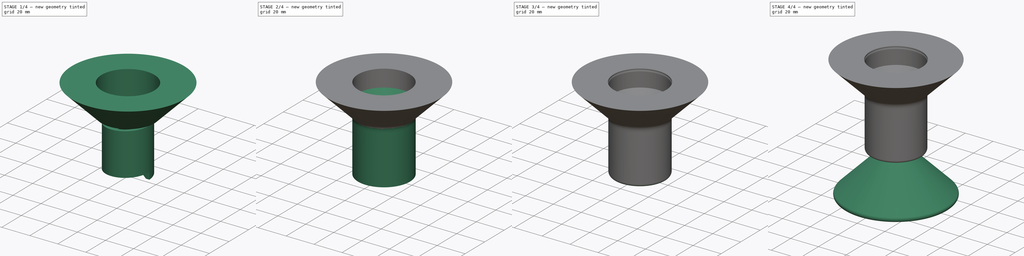
[diagram: build sequence overview — one tinted view per stage of 4, left to right]
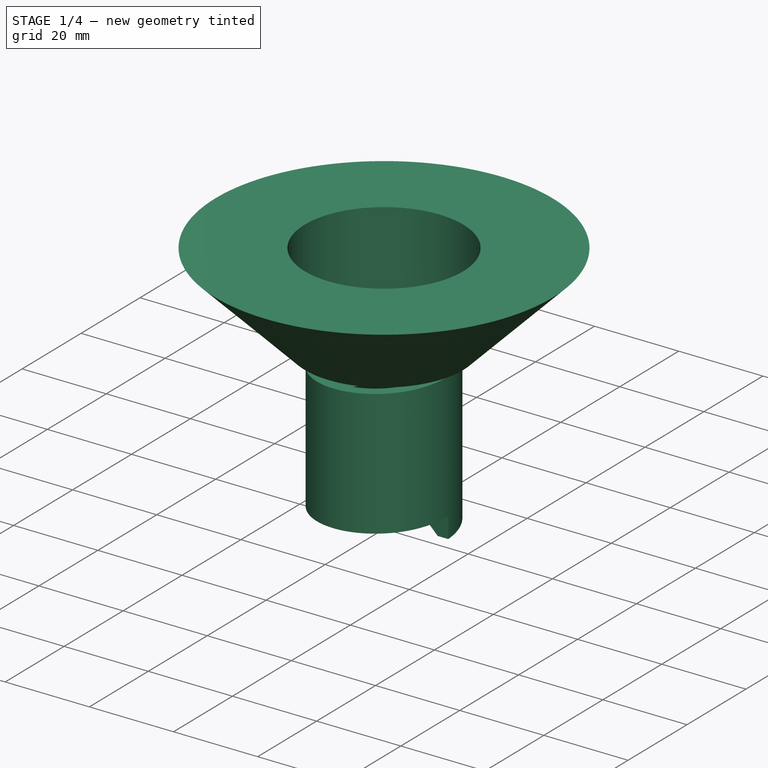
[diagram: stage 1 of 4 — iso view after this stage's code; geometry added in this stage tinted green]
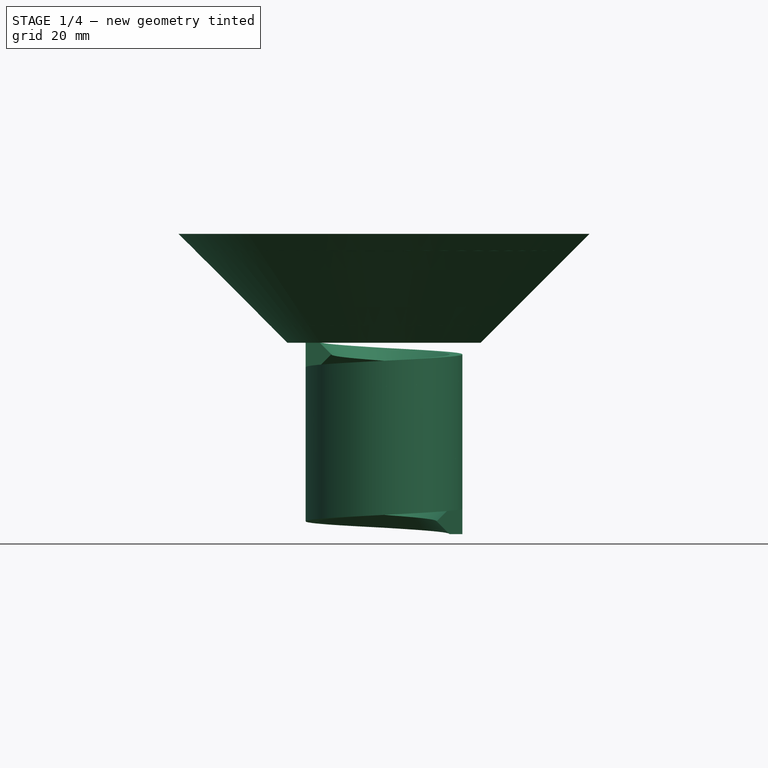
[diagram: stage 1 of 4 — front view after this stage's code; geometry added in this stage tinted green]
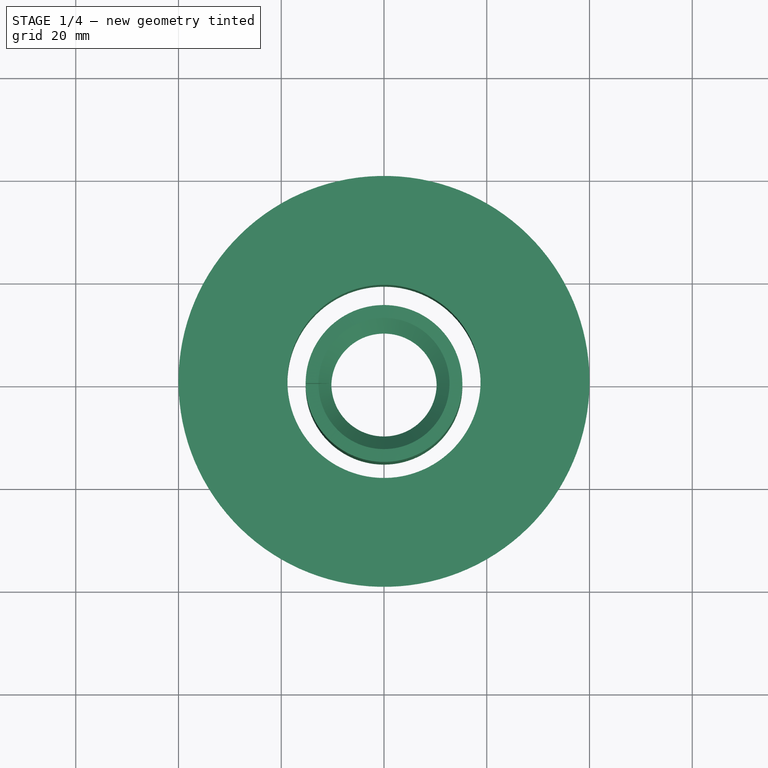
[diagram: stage 1 of 4 — top view after this stage's code; geometry added in this stage tinted green]
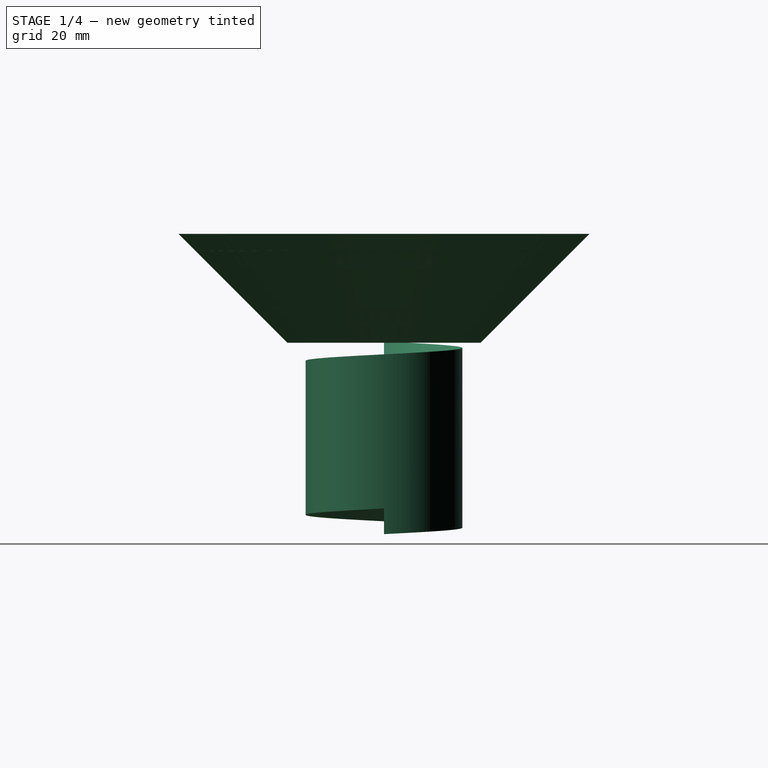
[diagram: stage 1 of 4 — right view after this stage's code; geometry added in this stage tinted green]
FCSTD DOCUMENT  (FreeCAD 0.16R6707 (Git))
Label: spool hub
License: All rights reserved
LicenseURL: http://en.wikipedia.org/wiki/All_rights_reserved
objects: App::DocumentObjectGroup×7, PartDesign::Fillet×7, Sketcher::SketchObject×5, PartDesign::Revolution×3, Part::Helix×2, Part::Sweep×2, Part::Feature×1
note: 23 computed .brp shape members not serialized (recipe doc carries the construction recipe); baked Part::Feature solids carry a one-line shape summary decoded from their .brp

FEATURE [Part::Helix] Helix001  label="f Helix"
  Angle = 0
  Height = 32.5
  LocalCoord = 0
  Pitch = 5
  Radius = 10
  Style = 1
FEATURE [Part::Sweep] Sweep001  label="f Sweep"
  Frenet = true
  Placement = pos=(0,0,-34) rot=(0,0,1;0rad)
  Sections = -> [Sketch004]
  Solid = true
  Spine = -> Helix001 [Edge1,Edge2,Edge3,Edge4,Edge5,Edge6,Edge7]
  Transition = 1
FEATURE [App::DocumentObjectGroup] Group003  label="m export"
  Group = -> [Fillet004,Fillet003]
FEATURE [App::DocumentObjectGroup] Group  label="male"
  Group = -> [Revolution,Sketch001,Fillet001,Sweep,Helix,Group003]
FEATURE [App::DocumentObjectGroup] Group004  label="f export"
  Group = -> [Fillet005,Fillet002]
FEATURE [App::DocumentObjectGroup] Group001  label="female"
  Group = -> [Revolution002,Sketch004,Fillet,Helix001,Sweep001,Group004]
FEATURE [Sketcher::SketchObject] Sketch005  label="washer profile"
  Placement = pos=(0,0,0) rot=(1,0,0;1.5708rad)
  sketch-geometry (23):
    g0: LineSegment [constr] StartX=0 StartY=0 StartZ=0 EndX=18.8 EndY=0 EndZ=0
    g1: LineSegment [constr] StartX=18.8 StartY=0 StartZ=0 EndX=18.8 EndY=12.2 EndZ=0
    g2: LineSegment [constr] StartX=18.8 StartY=12.2 StartZ=0 EndX=6.05 EndY=24.95 EndZ=0
    g3: LineSegment [constr] StartX=18.8 StartY=0 StartZ=0 EndX=40 EndY=0 EndZ=0
    g4: LineSegment [constr] StartX=40 StartY=0 StartZ=0 EndX=10 EndY=30 EndZ=0
    g5: LineSegment [constr] StartX=10 StartY=30 StartZ=0 EndX=10 EndY=71.2 EndZ=0
    g6: LineSegment [constr] StartX=0 StartY=71.2 StartZ=0 EndX=0 EndY=24.95 EndZ=0
    g7: LineSegment [constr] StartX=0 StartY=24.95 StartZ=0 EndX=6.05 EndY=24.95 EndZ=0
    g8: LineSegment [constr] StartX=0 StartY=71.2 StartZ=0 EndX=10 EndY=71.2 EndZ=0
    g9: LineSegment [constr] StartX=12.75 StartY=30 StartZ=0 EndX=12.75 EndY=68.25 EndZ=0
    g10: LineSegment [constr] StartX=12.75 StartY=30 StartZ=0 EndX=18.8 EndY=30 EndZ=0
    g11: LineSegment [constr] StartX=18.8 StartY=30 StartZ=0 EndX=18.8 EndY=68.25 EndZ=0
    g12: LineSegment StartX=18.8 StartY=68.25 StartZ=0 EndX=40 EndY=89.45 EndZ=0
    g13: LineSegment [constr] StartX=12.75 StartY=71.2 StartZ=0 EndX=12.75 EndY=68.25 EndZ=0
    g14: LineSegment [constr] StartX=12.75 StartY=71.2 StartZ=0 EndX=18.8 EndY=77.25 EndZ=0
    g15: LineSegment StartX=18.8 StartY=77.25 StartZ=0 EndX=18.8 EndY=89.45 EndZ=0
    g16: LineSegment StartX=18.8 StartY=89.45 StartZ=0 EndX=40 EndY=89.45 EndZ=0
    g17: LineSegment StartX=18.8 StartY=68.25 StartZ=0 EndX=18.8 EndY=77.25 EndZ=0
    g18: LineSegment [constr] StartX=12.75 StartY=68.25 StartZ=0 EndX=18.8 EndY=68.25 EndZ=0
    g19: LineSegment [constr] StartX=18.8 StartY=30 StartZ=0 EndX=18.8 EndY=21.2 EndZ=0
    g20: LineSegment [constr] StartX=18.8 StartY=21.2 StartZ=0 EndX=18.8 EndY=12.2 EndZ=0
    g21: LineSegment [constr] StartX=10 StartY=71.2 StartZ=0 EndX=12.75 EndY=71.2 EndZ=0
    g22: LineSegment [constr] StartX=10 StartY=30 StartZ=0 EndX=12.75 EndY=30 EndZ=0
  constraints (63):
    c: Coincident(g-1,g0)
    c: PointOnObject(g0,g-1)
    c: Coincident(g0,g1)
    c: Vertical(g1)
    c: Coincident(g1,g2)
    c: DistanceX(g0,g0) = 18.8
    c: DistanceY(g-1,g1) = 12.2
    c: DistanceX(g-1,g2) = 6.05
    c: Angle(g2) = 2.35619
    c: Coincident(g0,g3)
    c: Horizontal(g3)
    c: Coincident(g3,g4)
    c: Coincident(g4,g5)
    c: Vertical(g5)
    c: PointOnObject(g6,g-2)
    c: Vertical(g6)
    c: Coincident(g6,g7)
    c: Coincident(g7,g2)
    c: Horizontal(g7)
    c: Parallel(g4,g2)
    c: DistanceX(g6,g5) = 10
    c: Coincident(g8,g6)
    c: Coincident(g8,g5)
    c: Horizontal(g8)
    c: DistanceX(g-1,g3) = 40
    c: Vertical(g9)
    c: DistanceX(g5,g9) = 2.75
    c: Coincident(g9,g10)
    c: Horizontal(g10)
    c: Coincident(g10,g11)
    c: Vertical(g11)
    c: Coincident(g11,g12)
    c: Coincident(g13,g9)
    c: Vertical(g13)
    c: Coincident(g13,g14)
    c: Coincident(g14,g15)
    c: Vertical(g15)
    c: Coincident(g15,g16)
    c: Horizontal(g16)
    c: Coincident(g12,g16)
    c: Coincident(g17,g11)
    c: Coincident(g17,g14)
    c: Vertical(g17)
    c: Angle(g14) = 0.785398
    c: DistanceY(g15,g15) = 12.2
    c: Parallel(g12,g14)
    c: Equal(g3,g16)
    c: Coincident(g18,g9)
    c: Coincident(g18,g11)
    c: Horizontal(g18)
    c: Coincident(g10,g19)
    c: PointOnObject(g19,g4)
    c: Vertical(g19)
    c: Coincident(g19,g20)
    c: Coincident(g20,g1)
    c: Vertical(g20)
    c: DistanceY(g19,g5) = 50
    c: Coincident(g21,g5)
    c: Coincident(g21,g13)
    c: Horizontal(g21)
    c: Coincident(g22,g4)
    c: Coincident(g22,g9)
    c: Horizontal(g22)
FEATURE [PartDesign::Revolution] Revolution003  label="profile to washer"
  Angle = 360
  Axis = (0,0,1)
  Base = (0,0,0)
  Placement = pos=(0,0,0) rot=(1,0,0;1.5708rad)
  ReferenceAxis = -> Sketch005 [V_Axis]
  Reversed = true
  Sketch = -> Sketch005
FEATURE [Part::Feature] Revolution003001  label="profile to washer"
  shape: bbox 80 x 80 x 21.2 mm, 3 faces (baked)
FEATURE [PartDesign::Fillet] Fillet006  label="washer"
  Base = -> Revolution003001 [Edge4,Edge2,Edge1]
  Radius = 2
FEATURE [App::DocumentObjectGroup] Group006  label="washer export"
  Group = -> [Fillet006]
FEATURE [App::DocumentObjectGroup] Group005  label="washer"
  Group = -> [Revolution003,Group006,Revolution003001]
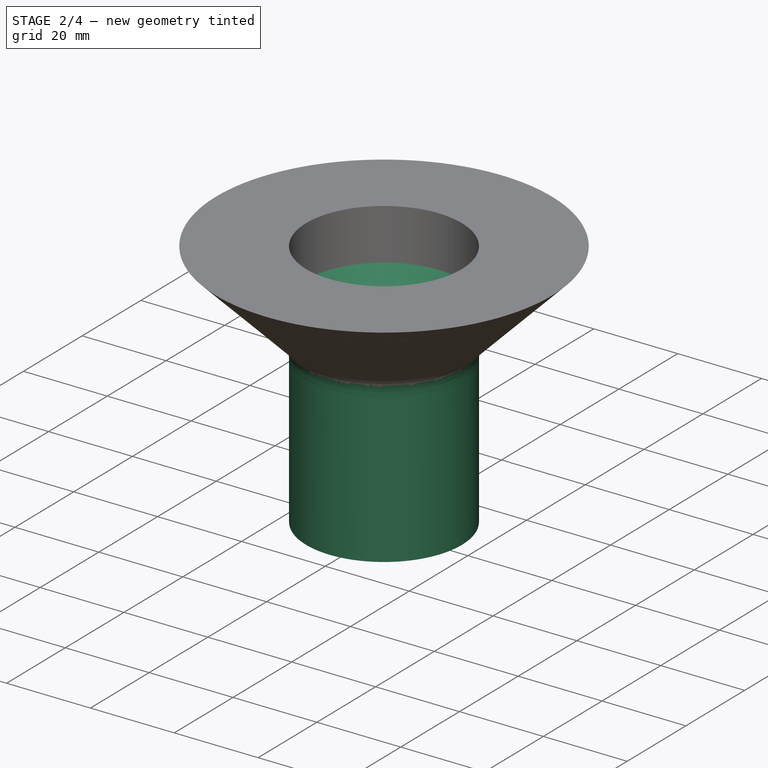
[diagram: stage 2 of 4 — iso view after this stage's code; geometry added in this stage tinted green]
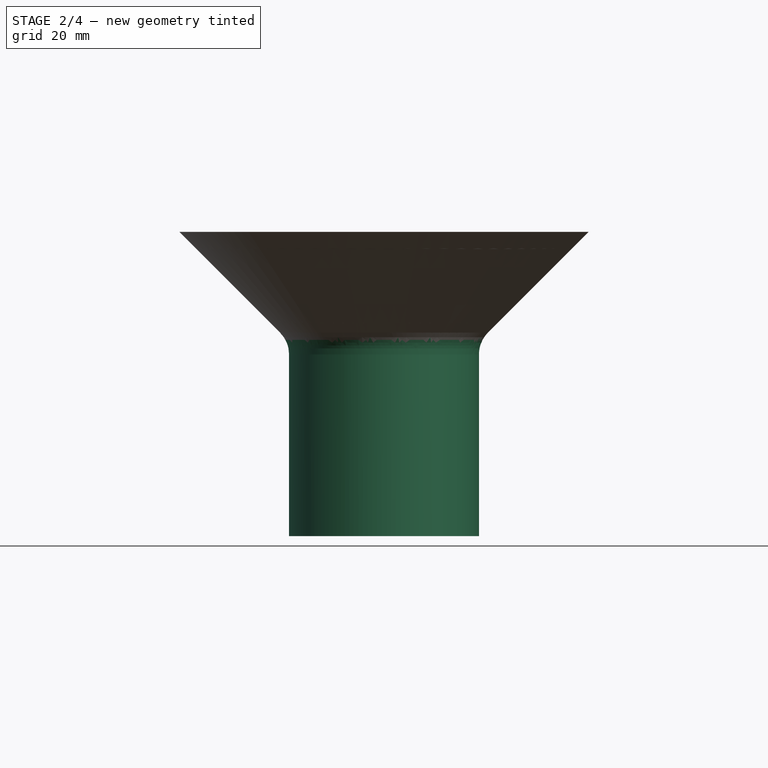
[diagram: stage 2 of 4 — front view after this stage's code; geometry added in this stage tinted green]
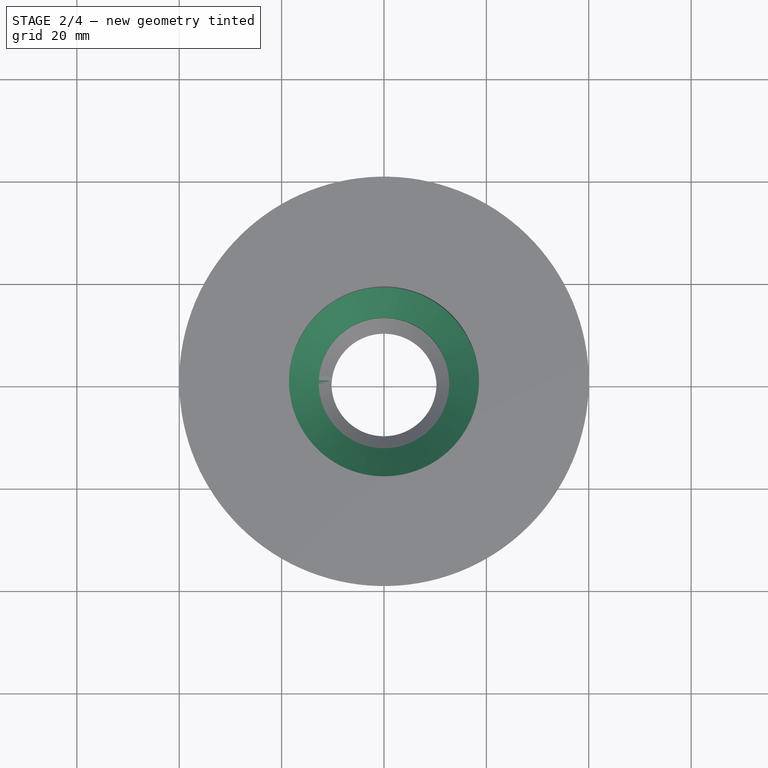
[diagram: stage 2 of 4 — top view after this stage's code; geometry added in this stage tinted green]
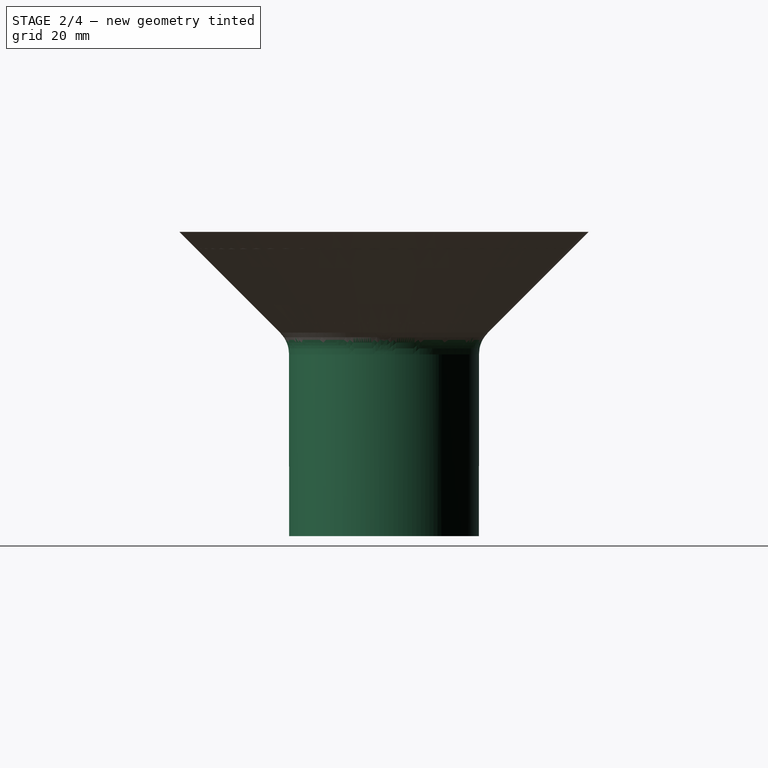
[diagram: stage 2 of 4 — right view after this stage's code; geometry added in this stage tinted green]
FEATURE [Sketcher::SketchObject] Sketch001  label="m thread profile"
  Placement = pos=(0,0,0) rot=(1,0,0;1.5708rad)
  sketch-geometry (14):
    g0: LineSegment [constr] StartX=0 StartY=0 StartZ=0 EndX=18.55 EndY=0 EndZ=0
    g1: LineSegment [constr] StartX=18.55 StartY=0 StartZ=0 EndX=18.55 EndY=12.1 EndZ=0
    g2: LineSegment [constr] StartX=18.55 StartY=12.1 StartZ=0 EndX=6.05 EndY=24.6 EndZ=0
    g3: LineSegment [constr] StartX=18.55 StartY=0 StartZ=0 EndX=40 EndY=0 EndZ=0
    g4: LineSegment [constr] StartX=40 StartY=0 StartZ=0 EndX=10 EndY=30 EndZ=0
    g5: LineSegment [constr] StartX=10 StartY=30 StartZ=0 EndX=10 EndY=105 EndZ=0
    g6: LineSegment [constr] StartX=0 StartY=105 StartZ=0 EndX=0 EndY=24.6 EndZ=0
    g7: LineSegment [constr] StartX=0 StartY=24.6 StartZ=0 EndX=6.05 EndY=24.6 EndZ=0
    g8: LineSegment [constr] StartX=0 StartY=105 StartZ=0 EndX=10 EndY=105 EndZ=0
    g9: LineSegment StartX=10 StartY=30 StartZ=0 EndX=12.5 EndY=32.5 EndZ=0
    g10: LineSegment StartX=12.5 StartY=32.5 StartZ=0 EndX=10 EndY=35 EndZ=0
    g11: LineSegment StartX=10 StartY=35 StartZ=0 EndX=5 EndY=35 EndZ=0
    g12: LineSegment StartX=5 StartY=35 StartZ=0 EndX=5 EndY=30 EndZ=0
    g13: LineSegment StartX=5 StartY=30 StartZ=0 EndX=10 EndY=30 EndZ=0
  constraints (40):
    c: Coincident(g-1,g0)
    c: PointOnObject(g0,g-1)
    c: Coincident(g0,g1)
    c: Vertical(g1)
    c: Coincident(g1,g2)
    c: DistanceX(g0,g0) = 18.55
    c: DistanceY(g-1,g1) = 12.1
    c: DistanceX(g-1,g2) = 6.05
    c: Angle(g2) = 2.35619
    c: Coincident(g0,g3)
    c: Horizontal(g3)
    c: Coincident(g3,g4)
    c: Coincident(g4,g5)
    c: Vertical(g5)
    c: PointOnObject(g6,g-2)
    c: Vertical(g6)
    c: Coincident(g6,g7)
    c: Coincident(g7,g2)
    c: Horizontal(g7)
    c: Parallel(g4,g2)
    c: DistanceX(g6,g5) = 10
    c: Coincident(g8,g6)
    c: Coincident(g8,g5)
    c: Horizontal(g8)
    c: DistanceX(g-1,g3) = 40
    c: DistanceY(g5,g5) = 75
    c: Coincident(g4,g9)
    c: Coincident(g9,g10)
    c: PointOnObject(g10,g5)
    c: Coincident(g10,g11)
    c: Horizontal(g11)
    c: Coincident(g11,g12)
    c: Vertical(g12)
    c: Coincident(g12,g13)
    c: Horizontal(g13)
    c: Coincident(g4,g13)
    c: Perpendicular(g10,g9)
    c: Equal(g10,g9)
    c: DistanceX(g13,g13) = 5
    c: DistanceY(g12,g12) = 5
FEATURE [Sketcher::SketchObject] Sketch003  label="f core profile"
  Placement = pos=(0,0,0) rot=(1,0,0;1.5708rad)
  sketch-geometry (23):
    g0: LineSegment [constr] StartX=0 StartY=0 StartZ=0 EndX=18.55 EndY=0 EndZ=0
    g1: LineSegment [constr] StartX=18.55 StartY=0 StartZ=0 EndX=18.55 EndY=12.2 EndZ=0
    g2: LineSegment [constr] StartX=18.55 StartY=12.2 StartZ=0 EndX=6.05 EndY=24.7 EndZ=0
    g3: LineSegment [constr] StartX=18.55 StartY=0 StartZ=0 EndX=40 EndY=0 EndZ=0
    g4: LineSegment [constr] StartX=40 StartY=0 StartZ=0 EndX=10 EndY=30 EndZ=0
    g5: LineSegment [constr] StartX=10 StartY=30 StartZ=0 EndX=10 EndY=71.45 EndZ=0
    g6: LineSegment [constr] StartX=0 StartY=71.45 StartZ=0 EndX=0 EndY=24.7 EndZ=0
    g7: LineSegment [constr] StartX=0 StartY=24.7 StartZ=0 EndX=6.05 EndY=24.7 EndZ=0
    g8: LineSegment [constr] StartX=0 StartY=71.45 StartZ=0 EndX=10 EndY=71.45 EndZ=0
    g9: LineSegment StartX=12.75 StartY=30 StartZ=0 EndX=12.75 EndY=68 EndZ=0
    g10: LineSegment StartX=12.75 StartY=30 StartZ=0 EndX=18.55 EndY=30 EndZ=0
    g11: LineSegment StartX=18.55 StartY=30 StartZ=0 EndX=18.55 EndY=68 EndZ=0
    g12: LineSegment StartX=18.55 StartY=68 StartZ=0 EndX=40 EndY=89.45 EndZ=0
    g13: LineSegment StartX=12.75 StartY=71.45 StartZ=0 EndX=12.75 EndY=68 EndZ=0
    g14: LineSegment StartX=12.75 StartY=71.45 StartZ=0 EndX=18.55 EndY=77.25 EndZ=0
    g15: LineSegment StartX=18.55 StartY=77.25 StartZ=0 EndX=18.55 EndY=89.45 EndZ=0
    g16: LineSegment StartX=18.55 StartY=89.45 StartZ=0 EndX=40 EndY=89.45 EndZ=0
    g17: LineSegment [constr] StartX=18.55 StartY=68 StartZ=0 EndX=18.55 EndY=77.25 EndZ=0
    g18: LineSegment [constr] StartX=12.75 StartY=68 StartZ=0 EndX=18.55 EndY=68 EndZ=0
    g19: LineSegment [constr] StartX=18.55 StartY=30 StartZ=0 EndX=18.55 EndY=21.45 EndZ=0
    g20: LineSegment [constr] StartX=18.55 StartY=21.45 StartZ=0 EndX=18.55 EndY=12.2 EndZ=0
    g21: LineSegment [constr] StartX=10 StartY=71.45 StartZ=0 EndX=12.75 EndY=71.45 EndZ=0
    g22: LineSegment [constr] StartX=10 StartY=30 StartZ=0 EndX=12.75 EndY=30 EndZ=0
  constraints (63):
    c: Coincident(g-1,g0)
    c: PointOnObject(g0,g-1)
    c: Coincident(g0,g1)
    c: Vertical(g1)
    c: Coincident(g1,g2)
    c: DistanceX(g0,g0) = 18.55
    c: DistanceY(g-1,g1) = 12.2
    c: DistanceX(g-1,g2) = 6.05
    c: Angle(g2) = 2.35619
    c: Coincident(g0,g3)
    c: Horizontal(g3)
    c: Coincident(g3,g4)
    c: Coincident(g4,g5)
    c: Vertical(g5)
    c: PointOnObject(g6,g-2)
    c: Vertical(g6)
    c: Coincident(g6,g7)
    c: Coincident(g7,g2)
    c: Horizontal(g7)
    c: Parallel(g4,g2)
    c: DistanceX(g6,g5) = 10
    c: Coincident(g8,g6)
    c: Coincident(g8,g5)
    c: Horizontal(g8)
    c: DistanceX(g-1,g3) = 40
    c: Vertical(g9)
    c: DistanceX(g5,g9) = 2.75
    c: Coincident(g9,g10)
    c: Horizontal(g10)
    c: Coincident(g10,g11)
    c: Vertical(g11)
    c: Coincident(g11,g12)
    c: Coincident(g13,g9)
    c: Vertical(g13)
    c: Coincident(g13,g14)
    c: Coincident(g14,g15)
    c: Vertical(g15)
    c: Coincident(g15,g16)
    c: Horizontal(g16)
    c: Coincident(g12,g16)
    c: Coincident(g17,g11)
    c: Coincident(g17,g14)
    c: Vertical(g17)
    c: Angle(g14) = 0.785398
    c: DistanceY(g15,g15) = 12.2
    c: Parallel(g12,g14)
    c: Equal(g3,g16)
    c: Coincident(g18,g9)
    c: Coincident(g18,g11)
    c: Horizontal(g18)
    c: Coincident(g10,g19)
    c: PointOnObject(g19,g4)
    c: Vertical(g19)
    c: Coincident(g19,g20)
    c: Coincident(g20,g1)
    c: Vertical(g20)
    c: DistanceY(g19,g5) = 50
    c: Coincident(g21,g5)
    c: Coincident(g21,g13)
    c: Horizontal(g21)
    c: Coincident(g22,g4)
    c: Coincident(g22,g9)
    c: Horizontal(g22)
FEATURE [PartDesign::Revolution] Revolution002  label="f core"
  Angle = 360
  Axis = (0,0,1)
  Base = (0,0,0)
  Placement = pos=(0,0,0) rot=(1,0,0;1.5708rad)
  ReferenceAxis = -> Sketch003 [V_Axis]
  Reversed = true
  Sketch = -> Sketch003
FEATURE [Sketcher::SketchObject] Sketch004  label="f thread profile"
  Placement = pos=(0,0,0) rot=(1,0,0;1.5708rad)
  sketch-geometry (25):
    g0: LineSegment [constr] StartX=0 StartY=0 StartZ=0 EndX=16.05 EndY=0 EndZ=0
    g1: LineSegment [constr] StartX=16.05 StartY=0 StartZ=0 EndX=16.05 EndY=10.1 EndZ=0
    g2: LineSegment [constr] StartX=16.05 StartY=10.1 StartZ=0 EndX=6.05 EndY=20.1 EndZ=0
    g3: LineSegment [constr] StartX=16.05 StartY=0 StartZ=0 EndX=40 EndY=0 EndZ=0
    g4: LineSegment [constr] StartX=40 StartY=0 StartZ=0 EndX=10 EndY=30 EndZ=0
    g5: LineSegment [constr] StartX=10 StartY=30 StartZ=0 EndX=10 EndY=105 EndZ=0
    g6: LineSegment [constr] StartX=0 StartY=105 StartZ=0 EndX=0 EndY=20.1 EndZ=0
    g7: LineSegment [constr] StartX=0 StartY=20.1 StartZ=0 EndX=6.05 EndY=20.1 EndZ=0
    g8: LineSegment [constr] StartX=0 StartY=105 StartZ=0 EndX=10 EndY=105 EndZ=0
    g9: LineSegment [constr] StartX=12.75 StartY=77.5 StartZ=0 EndX=12.75 EndY=107.5 EndZ=0
    g10: LineSegment [constr] StartX=12.75 StartY=107.5 StartZ=0 EndX=0 EndY=107.5 EndZ=0
    g11: LineSegment [constr] StartX=12.75 StartY=77.5 StartZ=0 EndX=16.05 EndY=77.5 EndZ=0
    g12: LineSegment [constr] StartX=16.05 StartY=77.5 StartZ=0 EndX=16.05 EndY=107.5 EndZ=0
    g13: LineSegment [constr] StartX=16.05 StartY=107.5 StartZ=0 EndX=40 EndY=131.45 EndZ=0
    g14: LineSegment [constr] StartX=12.75 StartY=118.05 StartZ=0 EndX=12.75 EndY=107.5 EndZ=0
    g15: LineSegment [constr] StartX=12.75 StartY=118.05 StartZ=0 EndX=16.05 EndY=121.35 EndZ=0
    g16: LineSegment [constr] StartX=16.05 StartY=121.35 StartZ=0 EndX=16.05 EndY=131.45 EndZ=0
    g17: LineSegment [constr] StartX=16.05 StartY=131.45 StartZ=0 EndX=40 EndY=131.45 EndZ=0
    g18: LineSegment [constr] StartX=16.05 StartY=10.1 StartZ=0 EndX=16.05 EndY=77.5 EndZ=0
    g19: LineSegment [constr] StartX=16.05 StartY=107.5 StartZ=0 EndX=16.05 EndY=121.35 EndZ=0
    g20: LineSegment StartX=12.75 StartY=100 StartZ=0 EndX=10.25 EndY=97.5 EndZ=0
    g21: LineSegment StartX=10.25 StartY=97.5 StartZ=0 EndX=12.75 EndY=95 EndZ=0
    g22: LineSegment StartX=12.75 StartY=95 StartZ=0 EndX=15.25 EndY=95 EndZ=0
    g23: LineSegment StartX=15.25 StartY=95 StartZ=0 EndX=15.25 EndY=100 EndZ=0
    g24: LineSegment StartX=15.25 StartY=100 StartZ=0 EndX=12.75 EndY=100 EndZ=0
  constraints (72):
    c: Coincident(g-1,g0)
    c: PointOnObject(g0,g-1)
    c: Coincident(g0,g1)
    c: Vertical(g1)
    c: Coincident(g1,g2)
    c: DistanceX(g0,g0) = 16.05
    c: DistanceY(g-1,g1) = 10.1
    c: DistanceX(g-1,g2) = 6.05
    c: Angle(g2) = 2.35619
    c: Coincident(g0,g3)
    c: Horizontal(g3)
    c: Coincident(g3,g4)
    c: Coincident(g4,g5)
    c: Vertical(g5)
    c: PointOnObject(g6,g-2)
    c: Vertical(g6)
    c: Coincident(g6,g7)
    c: Coincident(g7,g2)
    c: Horizontal(g7)
    c: Parallel(g4,g2)
    c: DistanceX(g6,g5) = 10
    c: Coincident(g8,g6)
    c: Coincident(g8,g5)
    c: Horizontal(g8)
    c: DistanceX(g-1,g3) = 40
    c: DistanceY(g5,g5) = 75
    c: Vertical(g9)
    c: Coincident(g9,g10)
    c: PointOnObject(g10,g-2)
    c: Horizontal(g10)
    c: DistanceX(g5,g9) = 2.75
    c: DistanceY(g-1,g10) = 107.5
    c: DistanceY(g9,g9) = 30
    c: Coincident(g9,g11)
    c: Horizontal(g11)
    c: Coincident(g11,g12)
    c: Vertical(g12)
    c: Coincident(g12,g13)
    c: Coincident(g14,g9)
    c: Vertical(g14)
    c: Coincident(g14,g15)
    c: Coincident(g15,g16)
    c: Vertical(g16)
    c: Coincident(g16,g17)
    c: Horizontal(g17)
    c: Coincident(g13,g17)
    c: Coincident(g18,g1)
    c: Coincident(g18,g11)
    c: Vertical(g18)
    c: Coincident(g19,g12)
    c: Coincident(g19,g15)
    c: Vertical(g19)
    c: Angle(g15) = 0.785398
    c: DistanceY(g16,g16) = 10.1
    c: Parallel(g13,g15)
    c: Equal(g3,g17)
    c: DistanceY(g12,g12) = 30
    c: PointOnObject(g20,g9)
    c: Coincident(g20,g21)
    c: PointOnObject(g21,g9)
    c: Coincident(g21,g22)
    c: Horizontal(g22)
    c: Coincident(g22,g23)
    c: Vertical(g23)
    c: Coincident(g23,g24)
    c: Coincident(g24,g20)
    c: Horizontal(g24)
    c: Equal(g20,g21)
    c: Perpendicular(g21,g20)
    c: DistanceY(g23,g23) = 5
    c: DistanceX(g22,g22) = 2.5
    c: DistanceY(g23,g5) = 5
FEATURE [App::DocumentObjectGroup] Group002  label="hook"
FEATURE [PartDesign::Fillet] Fillet  label="f head to core"
  Base = -> Revolution002 [Edge11]
  Placement = pos=(0,0,0) rot=(1,0,0;1.5708rad)
  Radius = 6
FEATURE [PartDesign::Fillet] Fillet005  label="f thread Fillet (export)"
  Base = -> Sweep001 [Edge68,Edge70,Edge2,Edge5]
  Placement = pos=(0,0,-34) rot=(0,0,1;0rad)
  Radius = 1.5
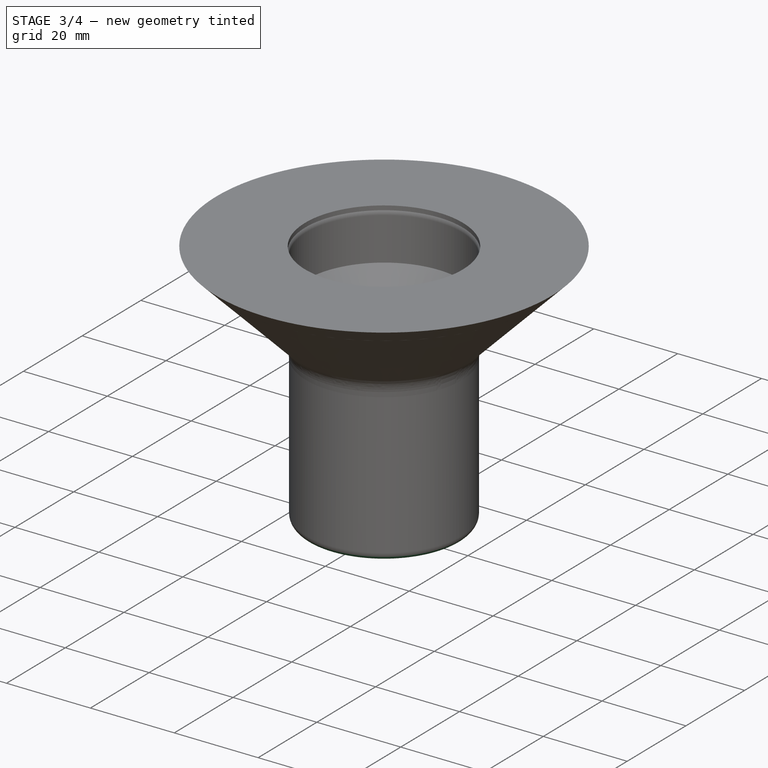
[diagram: stage 3 of 4 — iso view after this stage's code; geometry added in this stage tinted green]
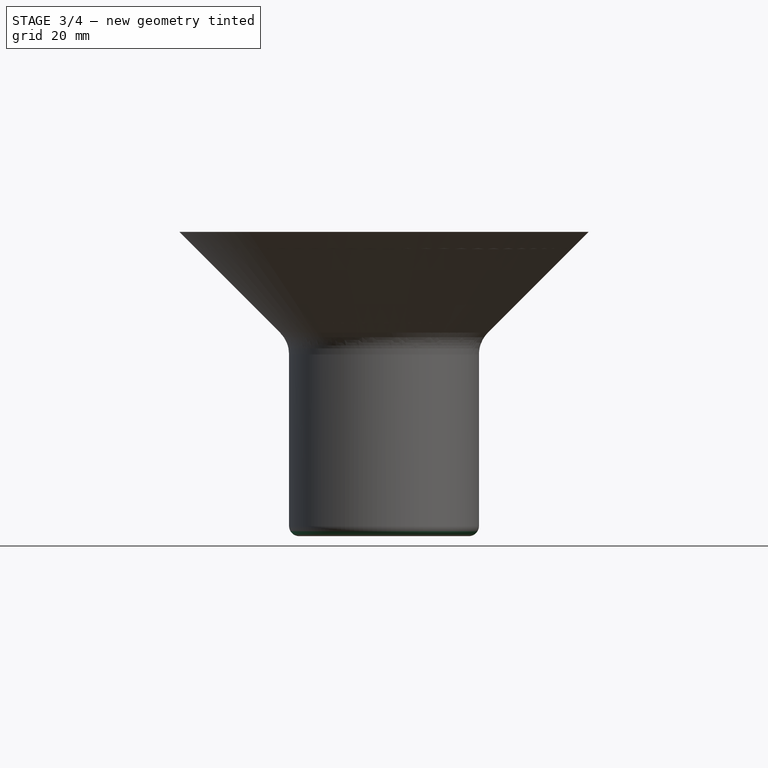
[diagram: stage 3 of 4 — front view after this stage's code; geometry added in this stage tinted green]
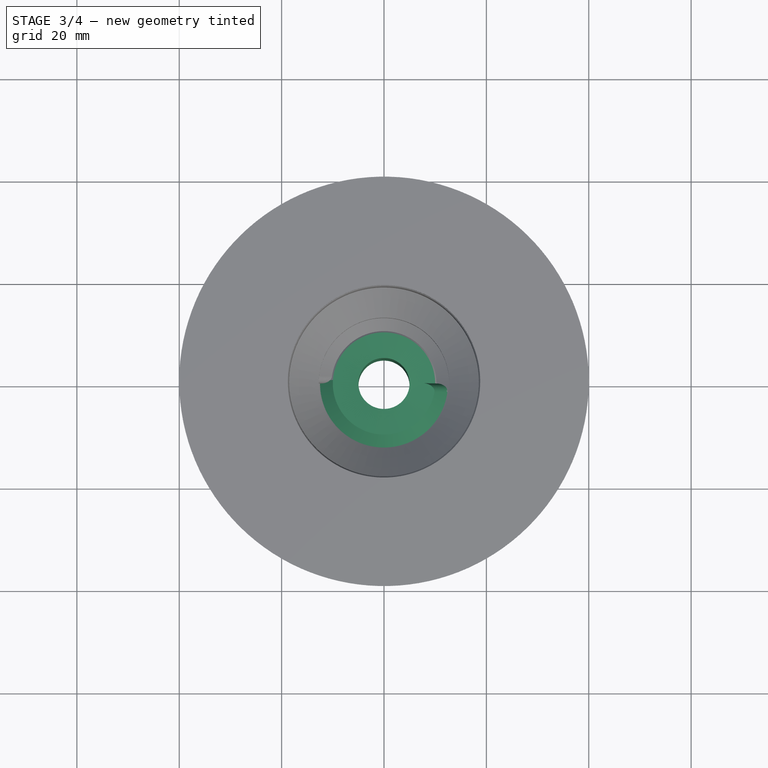
[diagram: stage 3 of 4 — top view after this stage's code; geometry added in this stage tinted green]
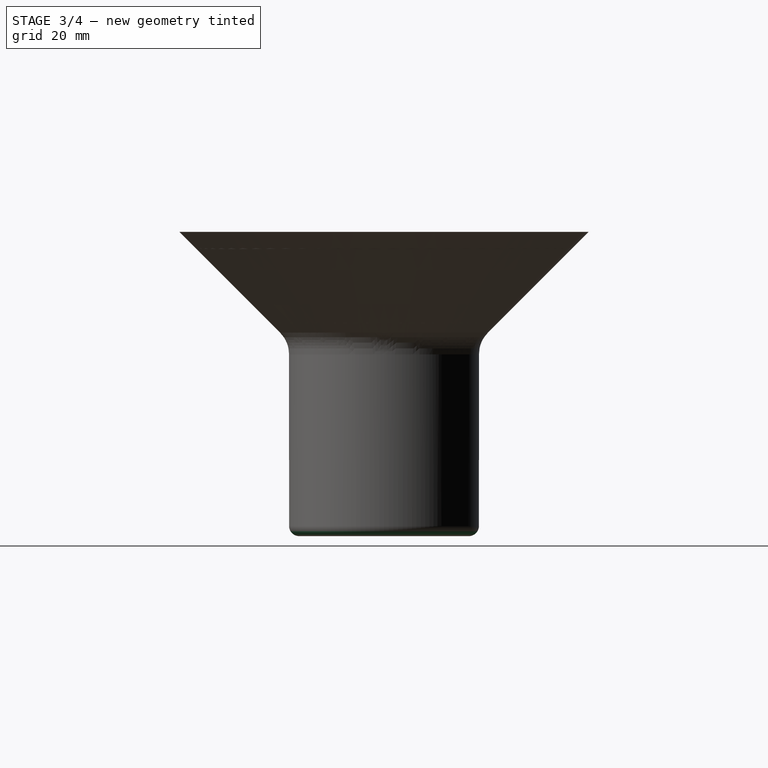
[diagram: stage 3 of 4 — right view after this stage's code; geometry added in this stage tinted green]
FEATURE [PartDesign::Fillet] Fillet002  label="f externals (export)"
  Base = -> Fillet [Edge6,Edge3,Edge11,Edge8]
  Placement = pos=(0,0,0) rot=(1,0,0;1.5708rad)
  Radius = 2
FEATURE [Part::Helix] Helix  label="m Helix"
  Angle = 0
  Height = 30
  LocalCoord = 0
  Pitch = 5
  Radius = 10
  Style = 1
FEATURE [Part::Sweep] Sweep  label="m Sweep"
  Frenet = true
  Placement = pos=(0,0,33.5) rot=(0,0,1;0rad)
  Sections = -> [Sketch001]
  Solid = true
  Spine = -> Helix [Edge1,Edge2,Edge3,Edge4,Edge5,Edge6]
  Transition = 1
FEATURE [PartDesign::Fillet] Fillet004  label="m thread Fillet (export)"
  Base = -> Sweep [Edge2,Edge5,Edge60,Edge58]
  Placement = pos=(0,0,33.5) rot=(0,0,1;0rad)
  Radius = 1.5
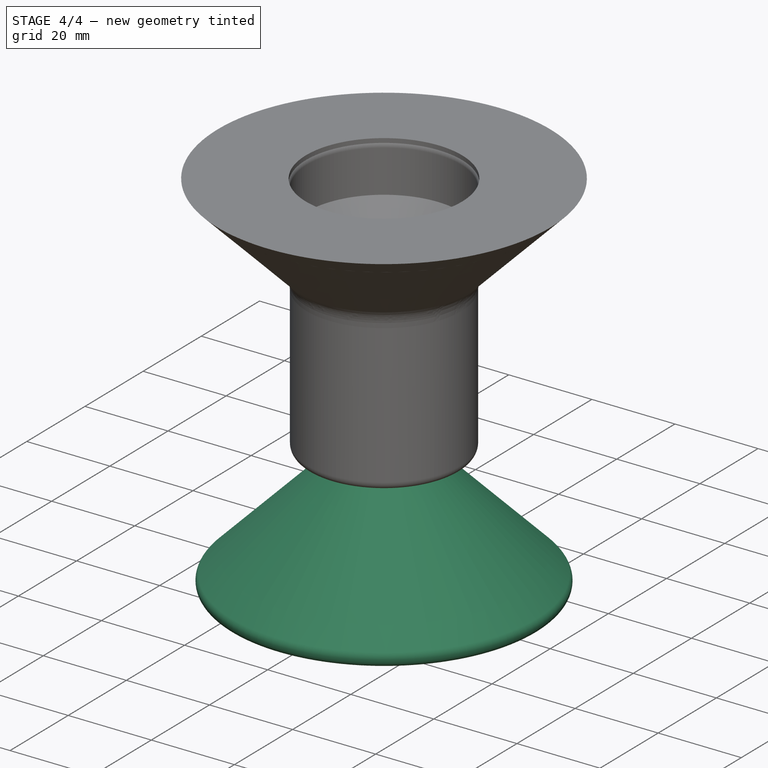
[diagram: stage 4 of 4 — iso view after this stage's code; geometry added in this stage tinted green]
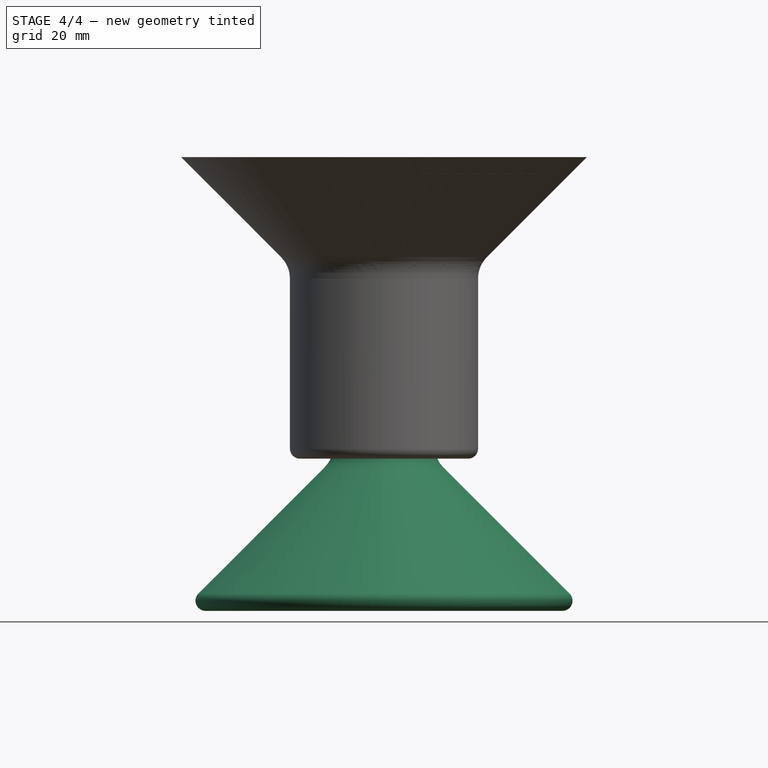
[diagram: stage 4 of 4 — front view after this stage's code; geometry added in this stage tinted green]
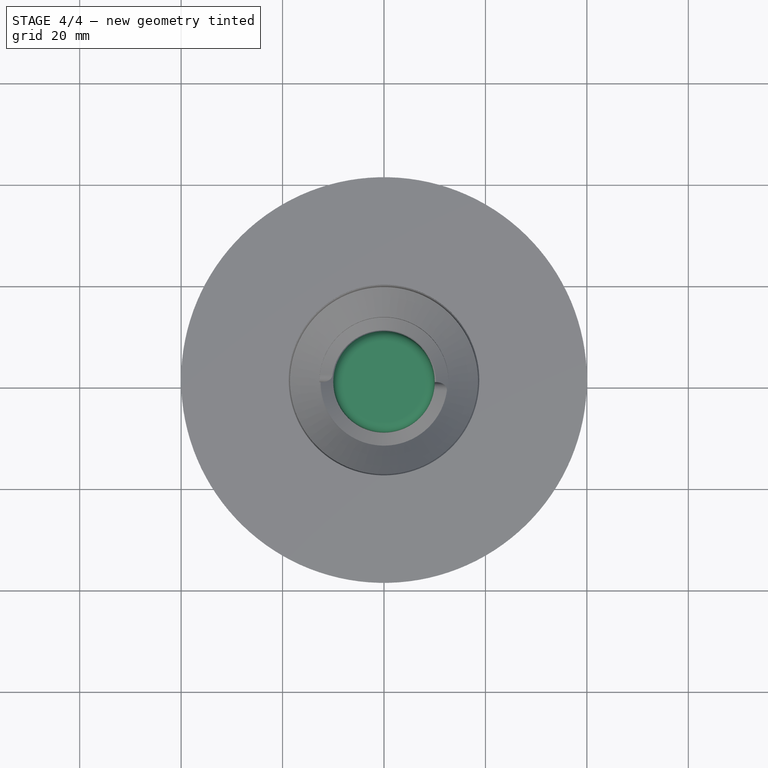
[diagram: stage 4 of 4 — top view after this stage's code; geometry added in this stage tinted green]
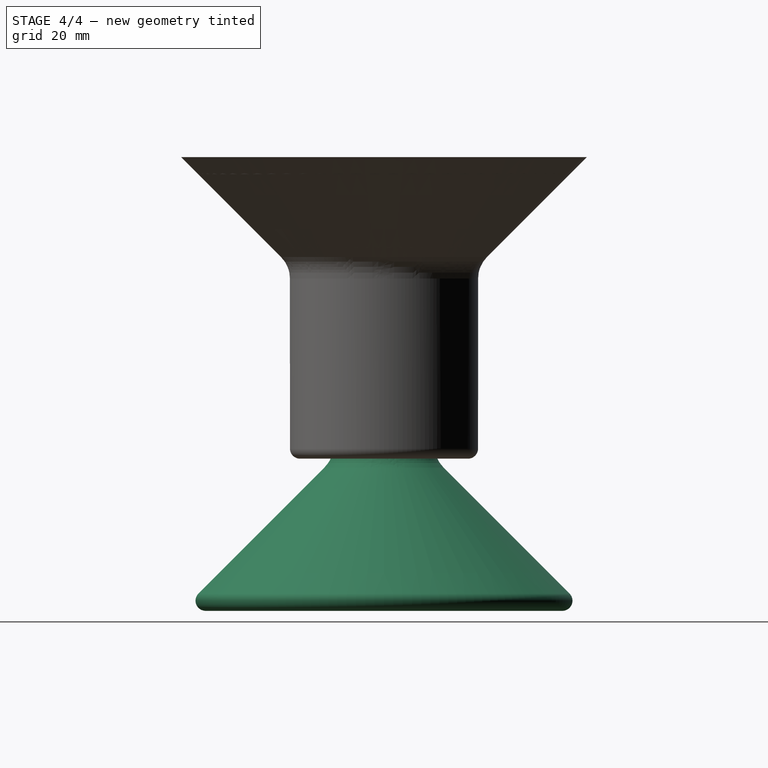
[diagram: stage 4 of 4 — right view after this stage's code; geometry added in this stage tinted green]
FEATURE [Sketcher::SketchObject] Sketch  label="m core profile"
  Placement = pos=(0,0,0) rot=(1,0,0;1.5708rad)
  sketch-geometry (10):
    g0: LineSegment [constr] StartX=0 StartY=0 StartZ=0 EndX=18.55 EndY=0 EndZ=0
    g1: LineSegment StartX=18.55 StartY=0 StartZ=0 EndX=18.55 EndY=12.2 EndZ=0
    g2: LineSegment StartX=18.55 StartY=12.2 StartZ=0 EndX=6.05 EndY=24.7 EndZ=0
    g3: LineSegment StartX=18.55 StartY=0 StartZ=0 EndX=40 EndY=0 EndZ=0
    g4: LineSegment StartX=40 StartY=0 StartZ=0 EndX=10 EndY=30 EndZ=0
    g5: LineSegment StartX=10 StartY=30 StartZ=0 EndX=10 EndY=71.45 EndZ=0
    g6: LineSegment StartX=0 StartY=71.45 StartZ=0 EndX=0 EndY=24.7 EndZ=0
    g7: LineSegment StartX=0 StartY=24.7 StartZ=0 EndX=6.05 EndY=24.7 EndZ=0
    g8: LineSegment StartX=0 StartY=71.45 StartZ=0 EndX=10 EndY=71.45 EndZ=0
    g9: LineSegment [constr] StartX=18.55 StartY=12.2 StartZ=0 EndX=18.55 EndY=21.45 EndZ=0
  constraints (29):
    c: Coincident(g-1,g0)
    c: PointOnObject(g0,g-1)
    c: Coincident(g0,g1)
    c: Vertical(g1)
    c: Coincident(g1,g2)
    c: DistanceX(g0,g0) = 18.55
    c: DistanceY(g-1,g1) = 12.2
    c: DistanceX(g-1,g2) = 6.05
    c: Angle(g2) = 2.35619
    c: Coincident(g0,g3)
    c: Horizontal(g3)
    c: Coincident(g3,g4)
    c: Coincident(g4,g5)
    c: Vertical(g5)
    c: PointOnObject(g6,g-2)
    c: Vertical(g6)
    c: Coincident(g6,g7)
    c: Coincident(g7,g2)
    c: Horizontal(g7)
    c: Parallel(g4,g2)
    c: DistanceX(g6,g5) = 10
    c: Coincident(g8,g6)
    c: Coincident(g8,g5)
    c: Horizontal(g8)
    c: DistanceX(g-1,g3) = 40
    c: Coincident(g9,g1)
    c: PointOnObject(g9,g4)
    c: Vertical(g9)
    c: DistanceY(g9,g5) = 50
FEATURE [PartDesign::Revolution] Revolution  label="m core"
  Angle = 360
  Axis = (0,0,1)
  Base = (0,0,0)
  Placement = pos=(0,0,0) rot=(1,0,0;1.5708rad)
  ReferenceAxis = -> Sketch [V_Axis]
  Reversed = true
  Sketch = -> Sketch
FEATURE [PartDesign::Fillet] Fillet001  label="m head to core"
  Base = -> Revolution [Edge2]
  Placement = pos=(0,0,0) rot=(1,0,0;1.5708rad)
  Radius = 6
FEATURE [PartDesign::Fillet] Fillet003  label="m externals (export)"
  Base = -> Fillet001 [Edge3,Edge8,Edge7]
  Placement = pos=(0,0,0) rot=(1,0,0;1.5708rad)
  Radius = 2
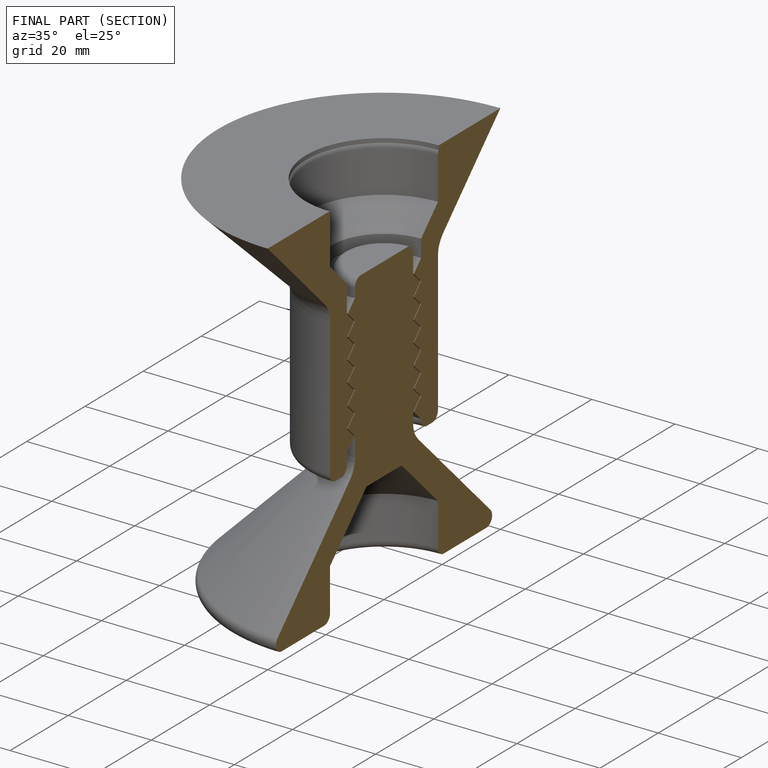
[diagram: finished part — half-section view (interior)]
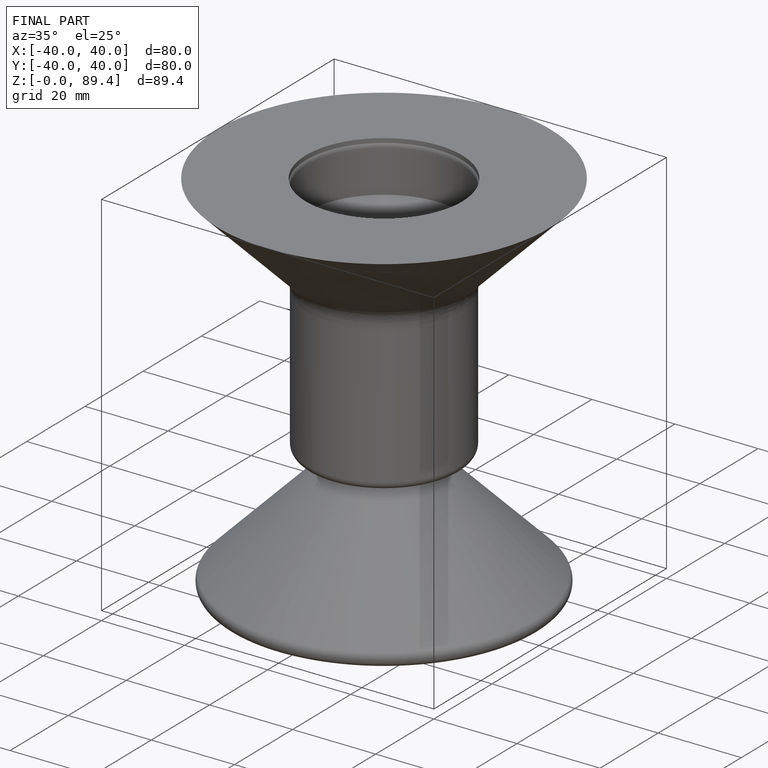
[diagram: finished part — iso view with bounding-box wireframe]
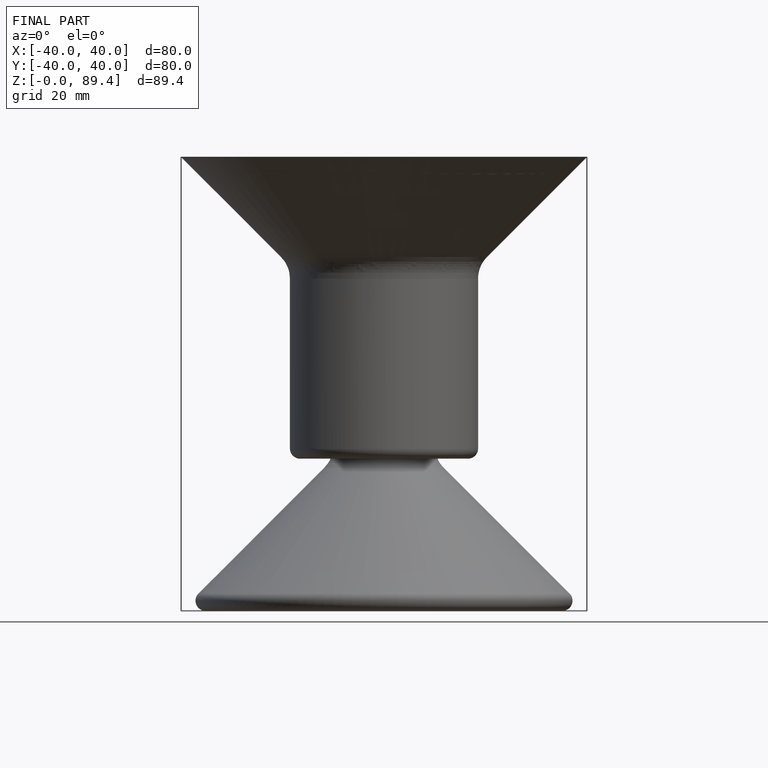
[diagram: finished part — front view with bounding-box wireframe]
